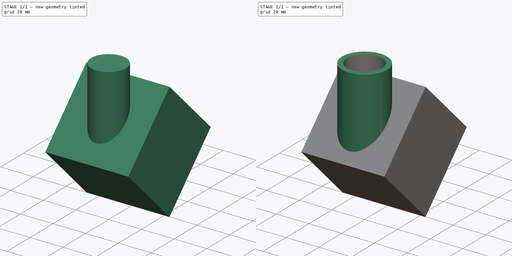
[diagram: build sequence overview — one tinted view per stage of 2, left to right]
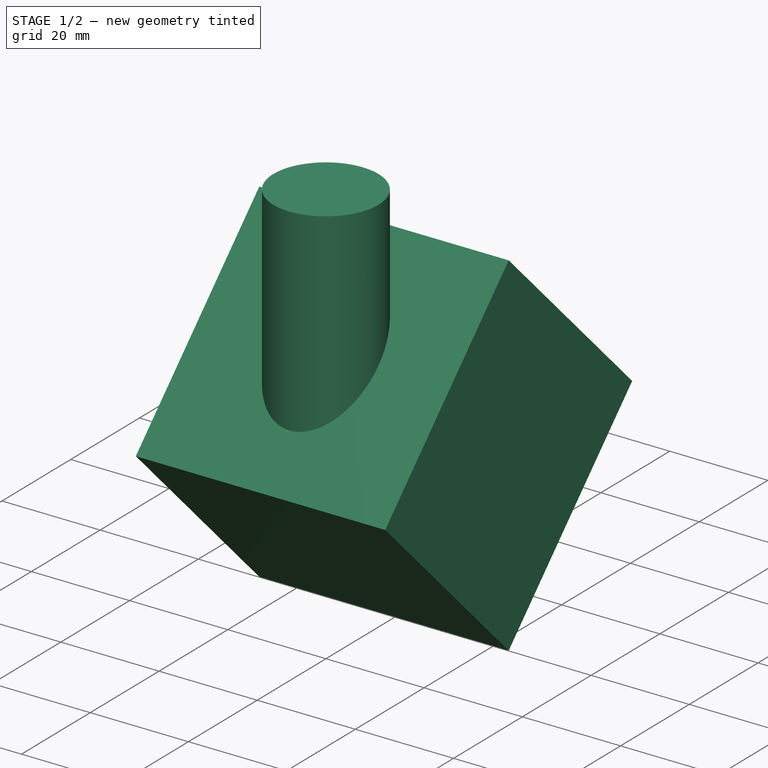
[diagram: stage 1 of 2 — iso view after this stage's code; geometry added in this stage tinted green]
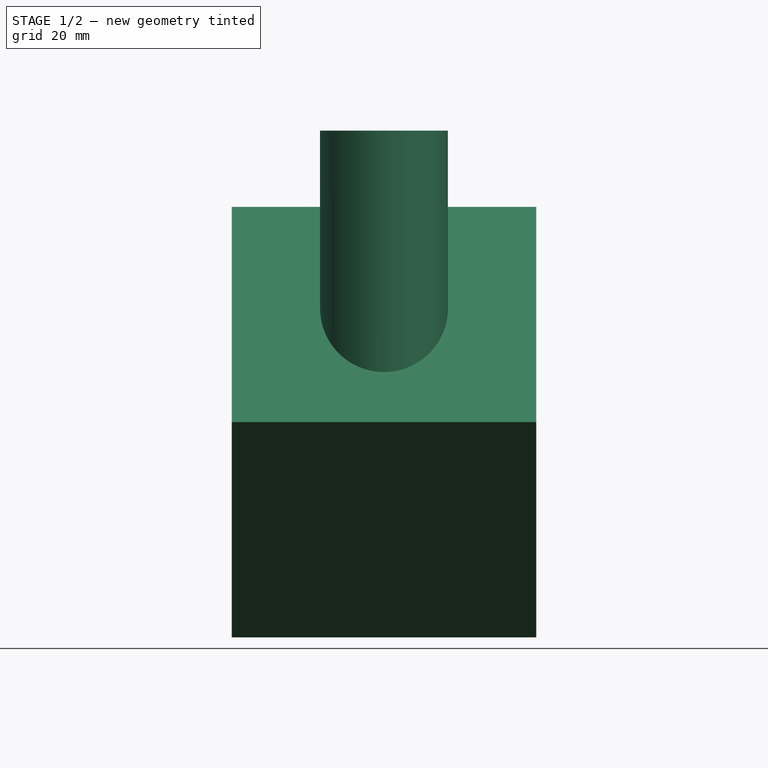
[diagram: stage 1 of 2 — front view after this stage's code; geometry added in this stage tinted green]
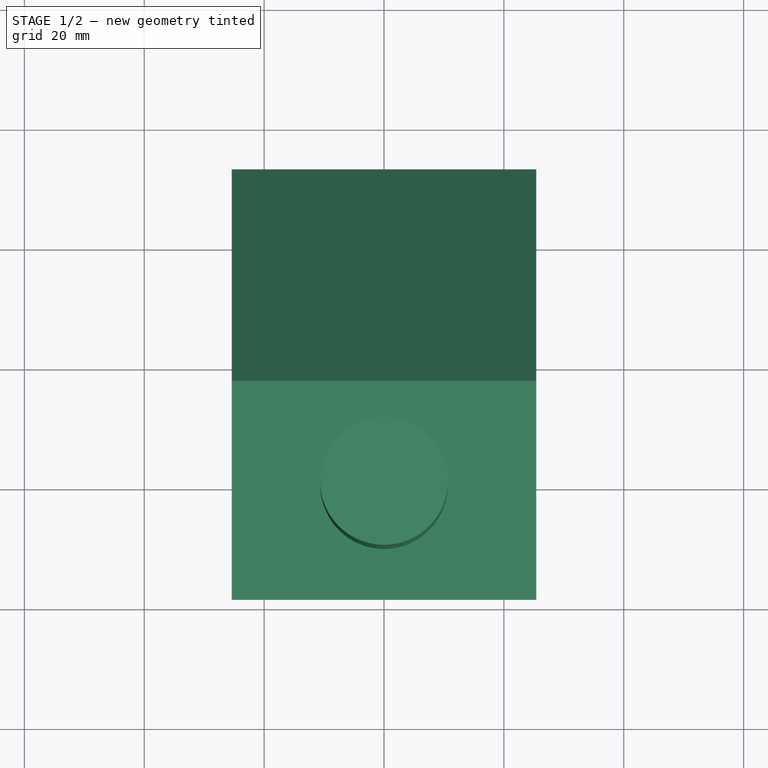
[diagram: stage 1 of 2 — top view after this stage's code; geometry added in this stage tinted green]
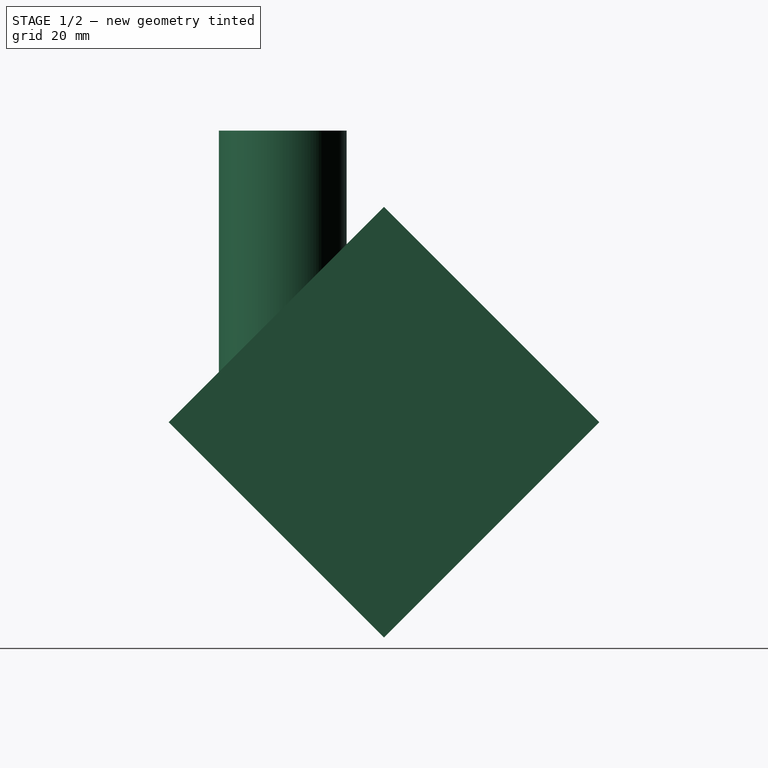
[diagram: stage 1 of 2 — right view after this stage's code; geometry added in this stage tinted green]
FCSTD DOCUMENT  (FreeCAD 0.16R6712 (Git))
Label: elbow 90 0.5in NPT
License: All rights reserved
LicenseURL: http://en.wikipedia.org/wiki/All_rights_reserved
objects: Part::Cylinder×2, Part::Cut×1, Part::Box×1, Sketcher::SketchObject×1
note: 5 computed .brp shape members not serialized (recipe doc carries the construction recipe); baked Part::Feature solids carry a one-line shape summary decoded from their .brp

FEATURE [Part::Cylinder] Cylinder001  label="outside"
  Angle = 360
  Height = 50.8
  Radius = 10.668
FEATURE [Part::Box] Box  label="Cube"
  Height = 50.8
  Length = 50.8
  Placement = pos=(-25.4,16.8947,-33.7658) rot=(1,0,0;0.785398rad)
  Width = 50.8
FEATURE [Sketcher::SketchObject] Sketch
  Placement = pos=(0,0,0) rot=(0.57735,0.57735,0.57735;2.0944rad)
  sketch-geometry (3):
    g0: LineSegment [constr] StartX=-13.716 StartY=0 StartZ=0 EndX=-13.716 EndY=22.098 EndZ=0
    g1: LineSegment [constr] StartX=13.716 StartY=0 StartZ=0 EndX=13.716 EndY=22.098 EndZ=0
    g2: LineSegment StartX=-13.716 StartY=22.098 StartZ=0 EndX=13.716 EndY=0 EndZ=0
  constraints (10):
    c: PointOnObject(g0,g-1)
    c: Vertical(g0)
    c: PointOnObject(g1,g-1)
    c: Vertical(g1)
    c: Symmetric(g0,g1,g-2)
    c: DistanceX(g0,g-1) = 13.716
    c: Equal(g0,g1)
    c: DistanceY(g0,g0) = 22.098
    c: Coincident(g2,g0)
    c: Coincident(g2,g1)
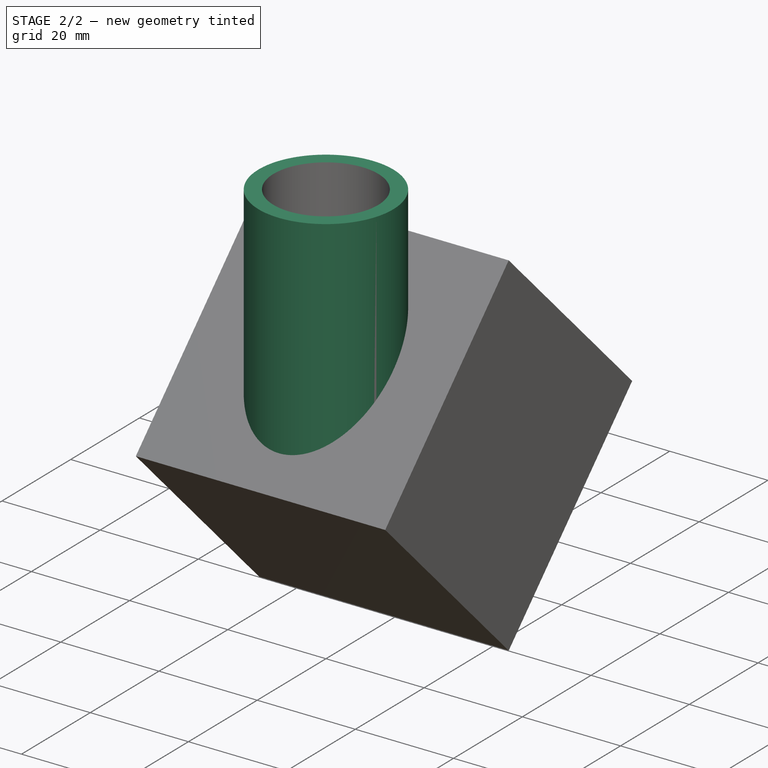
[diagram: stage 2 of 2 — iso view after this stage's code; geometry added in this stage tinted green]
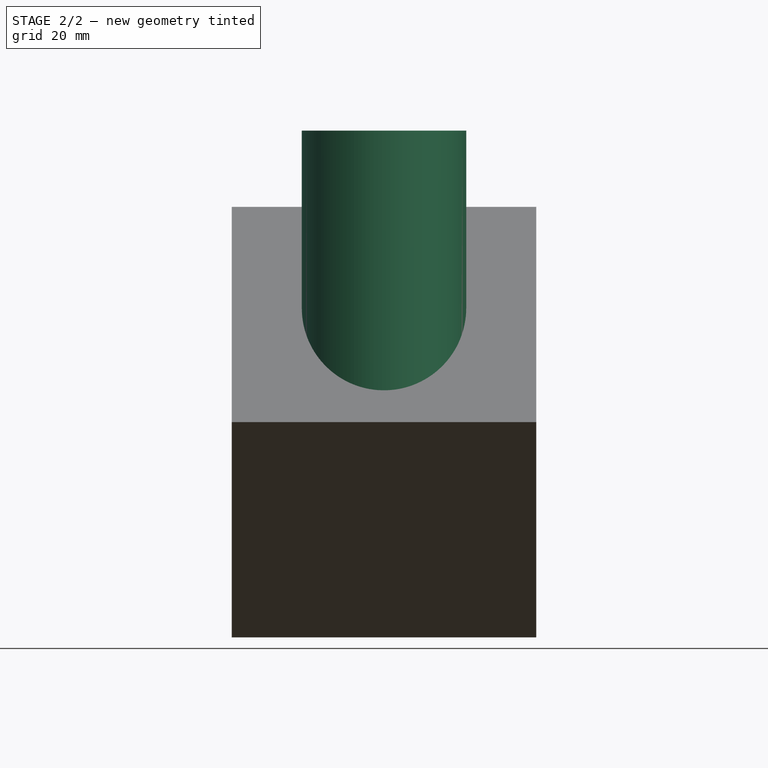
[diagram: stage 2 of 2 — front view after this stage's code; geometry added in this stage tinted green]
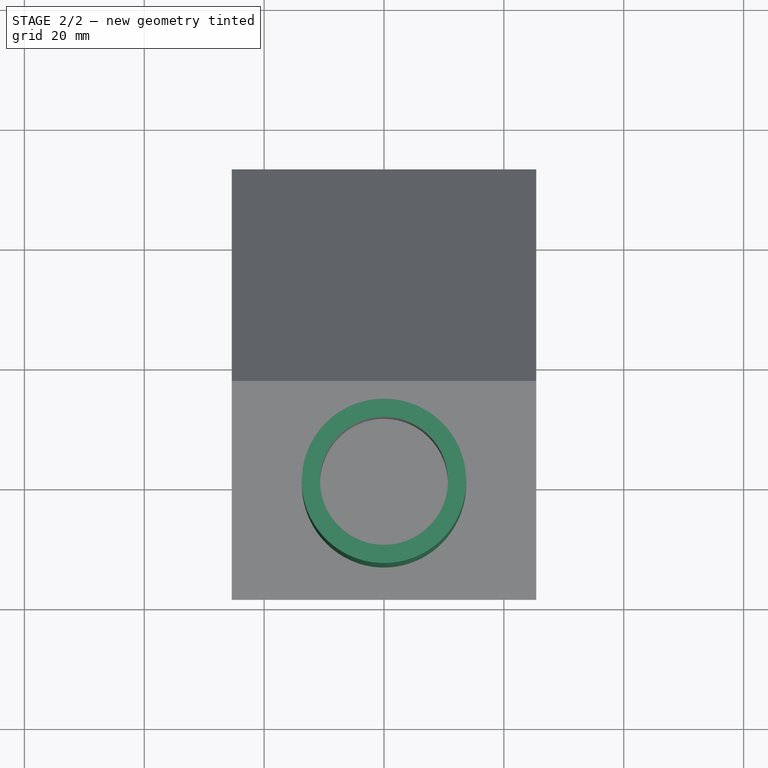
[diagram: stage 2 of 2 — top view after this stage's code; geometry added in this stage tinted green]
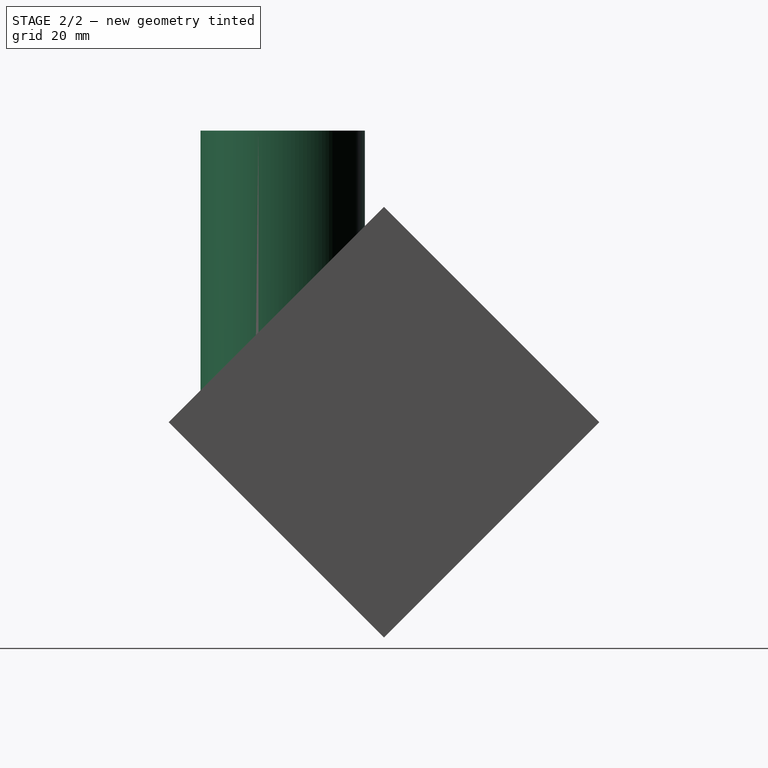
[diagram: stage 2 of 2 — right view after this stage's code; geometry added in this stage tinted green]
FEATURE [Part::Cylinder] Cylinder  label="inside"
  Angle = 360
  Height = 50.8
  Radius = 13.716
FEATURE [Part::Cut] Cut
  Base = -> Cylinder
  Tool = -> Cylinder001
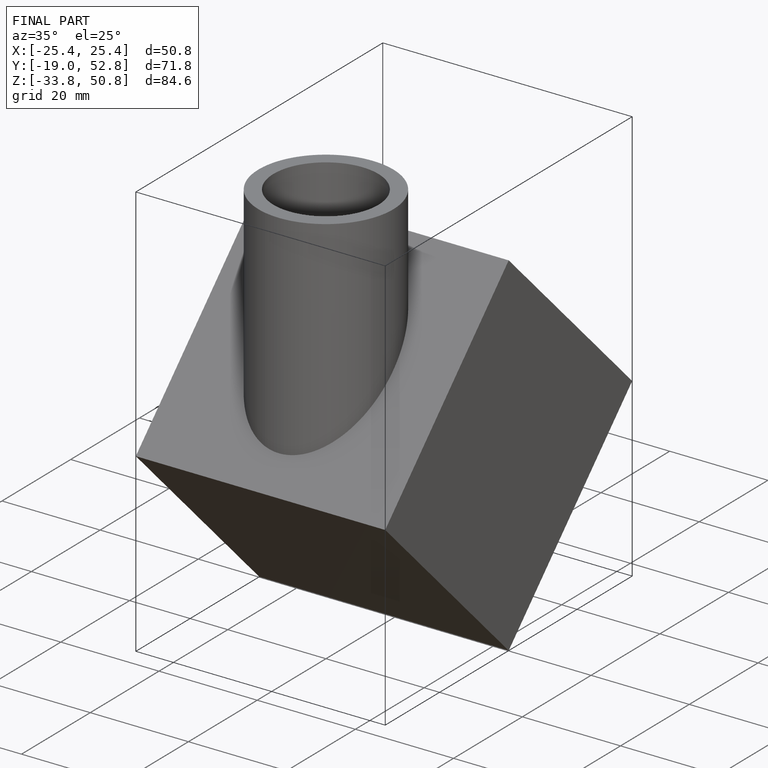
[diagram: finished part — iso view with bounding-box wireframe]
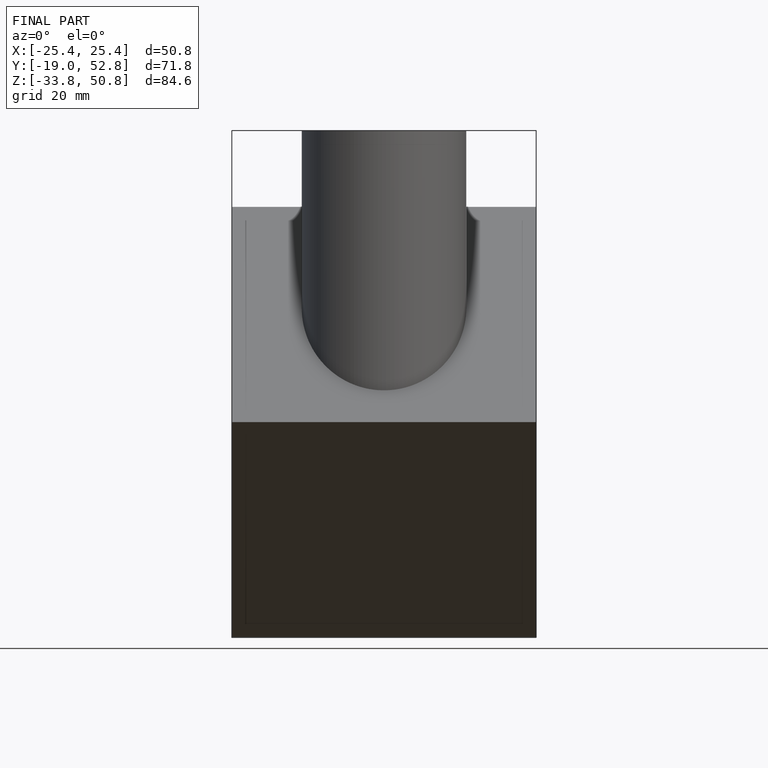
[diagram: finished part — front view with bounding-box wireframe]
